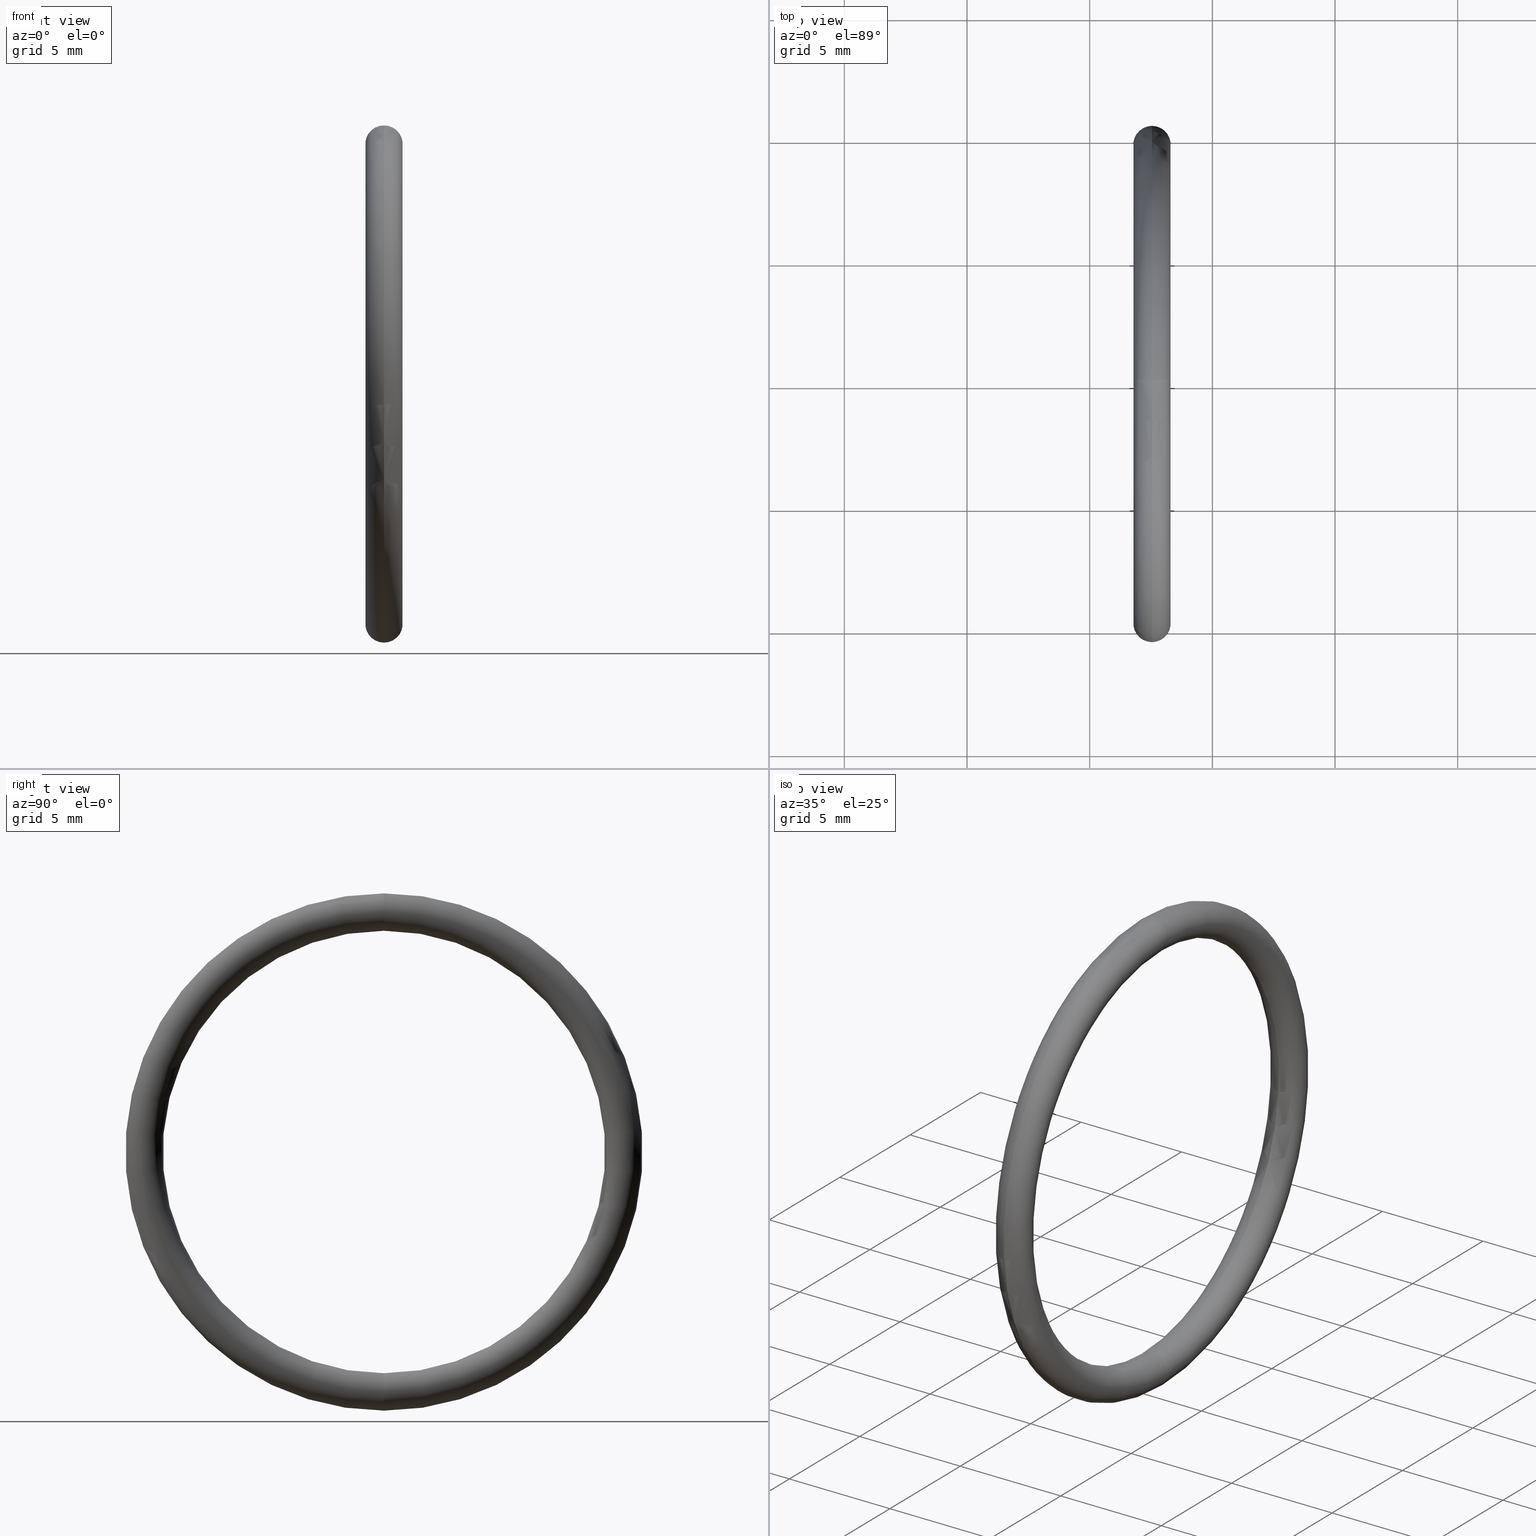
[diagram: canonical four-view strip — front | top / right | iso, engineering-drawing reading convention]
A machine part, canonical four-view strip (front | top / right | iso — engineering-drawing reading convention). The complete STEP part file that produces these views, byte-faithful:
ISO-10303-21;
HEADER;
FILE_DESCRIPTION (( 'STEP AP203' ),
    '1' );
FILE_NAME ('OR-16-BN.STEP',
    '2008-03-29T09:50:34',
    ( 'Baystate-05' ),
    ( 'BayState InfoTech' ),
    'SwSTEP 2.0',
    'SolidWorks 2007',
    '' );
FILE_SCHEMA (( 'CONFIG_CONTROL_DESIGN' ));
ENDSEC;

DATA;
#1 = SHAPE_DEFINITION_REPRESENTATION ( #2, #65 ) ;
#2 = PRODUCT_DEFINITION_SHAPE ( 'NONE', 'NONE',  #75 ) ;
#3 = PRODUCT_RELATED_PRODUCT_CATEGORY ( 'detail', '', ( #179 ) ) ;
#4 = PERSON_AND_ORGANIZATION ( #196, #68 ) ;
#5 = CC_DESIGN_PERSON_AND_ORGANIZATION_ASSIGNMENT ( #33, #6, ( #16 ) ) ;
#6 = PERSON_AND_ORGANIZATION_ROLE ( 'creator' ) ;
#7 = LOCAL_TIME ( 15, 20, 34.00000000000000000, #8 ) ;
#8 = COORDINATED_UNIVERSAL_TIME_OFFSET ( 5, 30, .AHEAD. ) ;
#9 = APPROVAL_PERSON_ORGANIZATION ( #13, #11, #10 ) ;
#10 = APPROVAL_ROLE ( '' ) ;
#11 = APPROVAL ( #12, 'UNSPECIFIED' ) ;
#12 = APPROVAL_STATUS ( 'not_yet_approved' ) ;
#13 = PERSON_AND_ORGANIZATION ( #196, #68 ) ;
#14 = CC_DESIGN_APPROVAL ( #72, ( #75 ) ) ;
#15 = APPROVAL_STATUS ( 'not_yet_approved' ) ;
#16 = PRODUCT_DEFINITION_FORMATION_WITH_SPECIFIED_SOURCE ( 'ANY', '', #179, .NOT_KNOWN. ) ;
#17 = APPROVAL_DATE_TIME ( #38, #72 ) ;
#18 = CC_DESIGN_SECURITY_CLASSIFICATION ( #50, ( #16 ) ) ;
#19 = CC_DESIGN_APPROVAL ( #11, ( #50 ) ) ;
#20 = APPROVAL_DATE_TIME ( #21, #11 ) ;
#21 = DATE_AND_TIME ( #22, #7 ) ;
#22 = CALENDAR_DATE ( 2008, 29, 3 ) ;
#23 = LOCAL_TIME ( 15, 20, 34.00000000000000000, #24 ) ;
#24 = COORDINATED_UNIVERSAL_TIME_OFFSET ( 5, 30, .AHEAD. ) ;
#25 = APPROVAL_PERSON_ORGANIZATION ( #54, #27, #26 ) ;
#26 = APPROVAL_ROLE ( '' ) ;
#27 = APPROVAL ( #15, 'UNSPECIFIED' ) ;
#28 = CC_DESIGN_DATE_AND_TIME_ASSIGNMENT ( #30, #29, ( #50 ) ) ;
#29 = DATE_TIME_ROLE ( 'classification_date' ) ;
#30 = DATE_AND_TIME ( #31, #32 ) ;
#31 = CALENDAR_DATE ( 2008, 29, 3 ) ;
#32 = LOCAL_TIME ( 15, 20, 34.00000000000000000, #46 ) ;
#33 = PERSON_AND_ORGANIZATION ( #196, #68 ) ;
#34 = CC_DESIGN_APPROVAL ( #27, ( #16 ) ) ;
#35 = APPROVAL_DATE_TIME ( #36, #27 ) ;
#36 = DATE_AND_TIME ( #37, #23 ) ;
#37 = CALENDAR_DATE ( 2008, 29, 3 ) ;
#38 = DATE_AND_TIME ( #58, #45 ) ;
#39 = CALENDAR_DATE ( 2008, 29, 3 ) ;
#40 = LOCAL_TIME ( 15, 20, 34.00000000000000000, #41 ) ;
#41 = COORDINATED_UNIVERSAL_TIME_OFFSET ( 5, 30, .AHEAD. ) ;
#42 = CC_DESIGN_PERSON_AND_ORGANIZATION_ASSIGNMENT ( #44, #43, ( #75 ) ) ;
#43 = PERSON_AND_ORGANIZATION_ROLE ( 'creator' ) ;
#44 = PERSON_AND_ORGANIZATION ( #196, #68 ) ;
#45 = LOCAL_TIME ( 15, 20, 34.00000000000000000, #69 ) ;
#46 = COORDINATED_UNIVERSAL_TIME_OFFSET ( 5, 30, .AHEAD. ) ;
#47 = CC_DESIGN_PERSON_AND_ORGANIZATION_ASSIGNMENT ( #49, #48, ( #50 ) ) ;
#48 = PERSON_AND_ORGANIZATION_ROLE ( 'classification_officer' ) ;
#49 = PERSON_AND_ORGANIZATION ( #196, #68 ) ;
#50 = SECURITY_CLASSIFICATION ( '', '', #51 ) ;
#51 = SECURITY_CLASSIFICATION_LEVEL ( 'unclassified' ) ;
#52 = CC_DESIGN_PERSON_AND_ORGANIZATION_ASSIGNMENT ( #4, #53, ( #16 ) ) ;
#53 = PERSON_AND_ORGANIZATION_ROLE ( 'design_supplier' ) ;
#54 = PERSON_AND_ORGANIZATION ( #196, #68 ) ;
#55 = CC_DESIGN_DATE_AND_TIME_ASSIGNMENT ( #57, #56, ( #75 ) ) ;
#56 = DATE_TIME_ROLE ( 'creation_date' ) ;
#57 = DATE_AND_TIME ( #39, #40 ) ;
#58 = CALENDAR_DATE ( 2008, 29, 3 ) ;
#59 = MANIFOLD_SOLID_BREP ( 'NONE', #102 ) ;
#60 = AXIS2_PLACEMENT_3D ( 'NONE', #63, #61, #62 ) ;
#61 = DIRECTION ( 'NONE',  ( 0.0000000000000000000, 1.000000000000000000, 1.224646799147353200E-016 ) ) ;
#62 = DIRECTION ( 'NONE',  ( 0.0000000000000000000, -1.224646799147352200E-016, 1.000000000000000000 ) ) ;
#63 = CARTESIAN_POINT ( 'NONE',  ( 0.1000000000000000600, 4.714890176717309300E-017, -0.3850000000000000100 ) ) ;
#64 =( GEOMETRIC_REPRESENTATION_CONTEXT ( 3 ) GLOBAL_UNCERTAINTY_ASSIGNED_CONTEXT ( ( #144 ) ) GLOBAL_UNIT_ASSIGNED_CONTEXT ( ( #175, #146, #145 ) ) REPRESENTATION_CONTEXT ( 'NONE', 'WORKASPACE' ) );
#65 = ADVANCED_BREP_SHAPE_REPRESENTATION ( 'OR-16-BN', ( #59, #195 ), #64 ) ;
#66 = APPLICATION_CONTEXT ( 'configuration controlled 3d designs of mechanical parts and assemblies' ) ;
#67 = PERSON_AND_ORGANIZATION_ROLE ( 'design_owner' ) ;
#68 = ORGANIZATION ( 'UNSPECIFIED', 'UNSPECIFIED', '' ) ;
#69 = COORDINATED_UNIVERSAL_TIME_OFFSET ( 5, 30, .AHEAD. ) ;
#70 = APPROVAL_PERSON_ORGANIZATION ( #74, #72, #71 ) ;
#71 = APPROVAL_ROLE ( '' ) ;
#72 = APPROVAL ( #73, 'UNSPECIFIED' ) ;
#73 = APPROVAL_STATUS ( 'not_yet_approved' ) ;
#74 = PERSON_AND_ORGANIZATION ( #196, #68 ) ;
#75 = PRODUCT_DEFINITION ( 'UNKNOWN', '', #16, #76 ) ;
#76 = DESIGN_CONTEXT ( 'detailed design', #66, 'design' ) ;
#77 = APPLICATION_PROTOCOL_DEFINITION ( 'international standard', 'config_control_design', 1994, #66 ) ;
#78 = PERSON_AND_ORGANIZATION ( #196, #68 ) ;
#79 = CC_DESIGN_PERSON_AND_ORGANIZATION_ASSIGNMENT ( #78, #67, ( #179 ) ) ;
#80 = MECHANICAL_CONTEXT ( 'NONE', #82, 'mechanical' ) ;
#81 = APPLICATION_PROTOCOL_DEFINITION ( 'international standard', 'config_control_design', 1994, #82 ) ;
#82 = APPLICATION_CONTEXT ( 'configuration controlled 3d designs of mechanical parts and assemblies' ) ;
#83 = EDGE_CURVE ( 'NONE', #84, #85, #120, .T. ) ;
#84 = VERTEX_POINT ( 'NONE', #149 ) ;
#85 = VERTEX_POINT ( 'NONE', #163 ) ;
#86 = ORIENTED_EDGE ( 'NONE', *, *, #87, .T. ) ;
#87 = EDGE_CURVE ( 'NONE', #107, #88, #150, .T. ) ;
#88 = VERTEX_POINT ( 'NONE', #167 ) ;
#89 = ORIENTED_EDGE ( 'NONE', *, *, #90, .F. ) ;
#90 = EDGE_CURVE ( 'NONE', #85, #88, #161, .T. ) ;
#91 = ADVANCED_FACE ( 'NONE', ( #162 ), #183, .T. ) ;
#92 = EDGE_LOOP ( 'NONE', ( #119, #93, #116, #115 ) ) ;
#93 = ORIENTED_EDGE ( 'NONE', *, *, #108, .T. ) ;
#94 = ORIENTED_EDGE ( 'NONE', *, *, #95, .F. ) ;
#95 = EDGE_CURVE ( 'NONE', #88, #107, #148, .T. ) ;
#96 = ORIENTED_EDGE ( 'NONE', *, *, #108, .F. ) ;
#97 = EDGE_CURVE ( 'NONE', #88, #85, #173, .T. ) ;
#98 = ADVANCED_FACE ( 'NONE', ( #174 ), #141, .T. ) ;
#99 = ORIENTED_EDGE ( 'NONE', *, *, #83, .F. ) ;
#100 = ORIENTED_EDGE ( 'NONE', *, *, #111, .F. ) ;
#101 = ORIENTED_EDGE ( 'NONE', *, *, #90, .T. ) ;
#102 = CLOSED_SHELL ( 'NONE', ( #98, #91, #117, #113 ) ) ;
#103 = EDGE_LOOP ( 'NONE', ( #114, #100, #101, #112 ) ) ;
#104 = EDGE_LOOP ( 'NONE', ( #99, #105, #86, #89 ) ) ;
#105 = ORIENTED_EDGE ( 'NONE', *, *, #106, .T. ) ;
#106 = EDGE_CURVE ( 'NONE', #84, #107, #182, .T. ) ;
#107 = VERTEX_POINT ( 'NONE', #136 ) ;
#108 = EDGE_CURVE ( 'NONE', #107, #84, #134, .T. ) ;
#109 = ORIENTED_EDGE ( 'NONE', *, *, #97, .T. ) ;
#110 = ORIENTED_EDGE ( 'NONE', *, *, #111, .T. ) ;
#111 = EDGE_CURVE ( 'NONE', #85, #84, #128, .T. ) ;
#112 = ORIENTED_EDGE ( 'NONE', *, *, #95, .T. ) ;
#113 = ADVANCED_FACE ( 'NONE', ( #129 ), #191, .T. ) ;
#114 = ORIENTED_EDGE ( 'NONE', *, *, #106, .F. ) ;
#115 = ORIENTED_EDGE ( 'NONE', *, *, #97, .F. ) ;
#116 = ORIENTED_EDGE ( 'NONE', *, *, #83, .T. ) ;
#117 = ADVANCED_FACE ( 'NONE', ( #156 ), #188, .T. ) ;
#118 = EDGE_LOOP ( 'NONE', ( #96, #94, #109, #110 ) ) ;
#119 = ORIENTED_EDGE ( 'NONE', *, *, #87, .F. ) ;
#120 = CIRCLE ( 'NONE', #60, 0.03000000000000002300 ) ;
#121 = CARTESIAN_POINT ( 'NONE',  ( 0.1000000000000000600, 0.0000000000000000000, 0.3850000000000000100 ) ) ;
#122 = AXIS2_PLACEMENT_3D ( 'NONE', #121, #124, #123 ) ;
#123 = DIRECTION ( 'NONE',  ( 0.0000000000000000000, 0.0000000000000000000, -1.000000000000000000 ) ) ;
#124 = DIRECTION ( 'NONE',  ( 0.0000000000000000000, -1.000000000000000000, 0.0000000000000000000 ) ) ;
#125 = DIRECTION ( 'NONE',  ( -1.000000000000000000, 0.0000000000000000000, 0.0000000000000000000 ) ) ;
#126 = CARTESIAN_POINT ( 'NONE',  ( 0.1000000000000000600, 0.0000000000000000000, 0.0000000000000000000 ) ) ;
#127 = AXIS2_PLACEMENT_3D ( 'NONE', #126, #125, #169 ) ;
#128 = CIRCLE ( 'NONE', #160, 0.03000000000000002300 ) ;
#129 = FACE_OUTER_BOUND ( 'NONE', #103, .T. ) ;
#130 = DIRECTION ( 'NONE',  ( 0.0000000000000000000, 0.0000000000000000000, 1.000000000000000000 ) ) ;
#131 = DIRECTION ( 'NONE',  ( -1.000000000000000000, 0.0000000000000000000, 0.0000000000000000000 ) ) ;
#132 = CARTESIAN_POINT ( 'NONE',  ( 0.1000000000000000600, 0.0000000000000000000, 0.0000000000000000000 ) ) ;
#133 = AXIS2_PLACEMENT_3D ( 'NONE', #132, #131, #130 ) ;
#134 = CIRCLE ( 'NONE', #133, 0.4150000000000000400 ) ;
#135 = CARTESIAN_POINT ( 'NONE',  ( 0.1000000000000000600, 4.714890176717309300E-017, -0.3850000000000000100 ) ) ;
#136 = CARTESIAN_POINT ( 'NONE',  ( 0.1000000000000000600, 0.0000000000000000000, 0.4150000000000000400 ) ) ;
#137 = DIRECTION ( 'NONE',  ( 0.0000000000000000000, 0.0000000000000000000, 1.000000000000000000 ) ) ;
#138 = DIRECTION ( 'NONE',  ( -1.000000000000000000, 0.0000000000000000000, 0.0000000000000000000 ) ) ;
#139 = DIRECTION ( 'NONE',  ( 0.0000000000000000000, 0.0000000000000000000, 1.000000000000000000 ) ) ;
#140 = AXIS2_PLACEMENT_3D ( 'NONE', #164, #165, #139 ) ;
#141 = TOROIDAL_SURFACE ( 'NONE', #140, 0.3850000000000000100, 0.03000000000000000900 ) ;
#142 = DIRECTION ( 'NONE',  ( 0.0000000000000000000, 0.0000000000000000000, -1.000000000000000000 ) ) ;
#143 = DIRECTION ( 'NONE',  ( 0.0000000000000000000, -1.000000000000000000, 0.0000000000000000000 ) ) ;
#144 = UNCERTAINTY_MEASURE_WITH_UNIT (LENGTH_MEASURE( 1.000000000000000100E-005 ), #175, 'distance_accuracy_value', 'NONE');
#145 =( NAMED_UNIT ( * ) SI_UNIT ( $, .STERADIAN. ) SOLID_ANGLE_UNIT ( ) );
#146 =( NAMED_UNIT ( * ) PLANE_ANGLE_UNIT ( ) SI_UNIT ( $, .RADIAN. ) );
#147 = AXIS2_PLACEMENT_3D ( 'NONE', #151, #143, #142 ) ;
#148 = CIRCLE ( 'NONE', #147, 0.03000000000000002300 ) ;
#149 = CARTESIAN_POINT ( 'NONE',  ( 0.1000000000000000600, 5.082284216461516300E-017, -0.4150000000000000400 ) ) ;
#150 = CIRCLE ( 'NONE', #122, 0.03000000000000002300 ) ;
#151 = CARTESIAN_POINT ( 'NONE',  ( 0.1000000000000000600, 0.0000000000000000000, 0.3850000000000000100 ) ) ;
#152 = DIRECTION ( 'NONE',  ( 0.0000000000000000000, 0.0000000000000000000, 1.000000000000000000 ) ) ;
#153 = DIRECTION ( 'NONE',  ( -1.000000000000000000, 0.0000000000000000000, 0.0000000000000000000 ) ) ;
#154 = AXIS2_PLACEMENT_3D ( 'NONE', #168, #153, #152 ) ;
#155 = CARTESIAN_POINT ( 'NONE',  ( 0.1000000000000000600, 0.0000000000000000000, 0.0000000000000000000 ) ) ;
#156 = FACE_OUTER_BOUND ( 'NONE', #118, .T. ) ;
#157 = DIRECTION ( 'NONE',  ( -1.000000000000000000, 0.0000000000000000000, 0.0000000000000000000 ) ) ;
#158 = DIRECTION ( 'NONE',  ( 0.0000000000000000000, -1.224646799147352200E-016, 1.000000000000000000 ) ) ;
#159 = DIRECTION ( 'NONE',  ( 0.0000000000000000000, 1.000000000000000000, 1.224646799147353200E-016 ) ) ;
#160 = AXIS2_PLACEMENT_3D ( 'NONE', #135, #159, #158 ) ;
#161 = CIRCLE ( 'NONE', #127, 0.3549999999999999800 ) ;
#162 = FACE_OUTER_BOUND ( 'NONE', #92, .T. ) ;
#163 = CARTESIAN_POINT ( 'NONE',  ( 0.1000000000000000600, 4.347496136973103500E-017, -0.3549999999999999800 ) ) ;
#164 = CARTESIAN_POINT ( 'NONE',  ( 0.1000000000000000600, 0.0000000000000000000, 0.0000000000000000000 ) ) ;
#165 = DIRECTION ( 'NONE',  ( -1.000000000000000000, 0.0000000000000000000, 0.0000000000000000000 ) ) ;
#166 = DIRECTION ( 'NONE',  ( 0.0000000000000000000, 0.0000000000000000000, 1.000000000000000000 ) ) ;
#167 = CARTESIAN_POINT ( 'NONE',  ( 0.1000000000000000600, 0.0000000000000000000, 0.3549999999999999800 ) ) ;
#168 = CARTESIAN_POINT ( 'NONE',  ( 0.1000000000000000600, 0.0000000000000000000, 0.0000000000000000000 ) ) ;
#169 = DIRECTION ( 'NONE',  ( 0.0000000000000000000, 0.0000000000000000000, 1.000000000000000000 ) ) ;
#170 = DIRECTION ( 'NONE',  ( -1.000000000000000000, 0.0000000000000000000, 0.0000000000000000000 ) ) ;
#171 = CARTESIAN_POINT ( 'NONE',  ( 0.1000000000000000600, 0.0000000000000000000, 0.0000000000000000000 ) ) ;
#172 = AXIS2_PLACEMENT_3D ( 'NONE', #171, #170, #166 ) ;
#173 = CIRCLE ( 'NONE', #172, 0.3549999999999999800 ) ;
#174 = FACE_OUTER_BOUND ( 'NONE', #104, .T. ) ;
#175 =( CONVERSION_BASED_UNIT ( 'INCH', #176 ) LENGTH_UNIT ( ) NAMED_UNIT ( #177 ) );
#176 = LENGTH_MEASURE_WITH_UNIT ( LENGTH_MEASURE( 0.02539999999999999900 ), #178 );
#177 = DIMENSIONAL_EXPONENTS ( 1.000000000000000000, 0.0000000000000000000, 0.0000000000000000000, 0.0000000000000000000, 0.0000000000000000000, 0.0000000000000000000, 0.0000000000000000000 ) ;
#178 =( LENGTH_UNIT ( ) NAMED_UNIT ( * ) SI_UNIT ( $, .METRE. ) );
#179 = PRODUCT ( 'OR-16-BN', 'OR-16-BN', '', ( #80 ) ) ;
#180 = CARTESIAN_POINT ( 'NONE',  ( 0.1000000000000000600, 0.0000000000000000000, 0.0000000000000000000 ) ) ;
#181 = AXIS2_PLACEMENT_3D ( 'NONE', #180, #138, #137 ) ;
#182 = CIRCLE ( 'NONE', #181, 0.4150000000000000400 ) ;
#183 = TOROIDAL_SURFACE ( 'NONE', #154, 0.3850000000000000100, 0.03000000000000000900 ) ;
#184 = DIRECTION ( 'NONE',  ( 0.0000000000000000000, 0.0000000000000000000, 1.000000000000000000 ) ) ;
#185 = DIRECTION ( 'NONE',  ( -1.000000000000000000, 0.0000000000000000000, 0.0000000000000000000 ) ) ;
#186 = CARTESIAN_POINT ( 'NONE',  ( 0.1000000000000000600, 0.0000000000000000000, 0.0000000000000000000 ) ) ;
#187 = AXIS2_PLACEMENT_3D ( 'NONE', #186, #185, #184 ) ;
#188 = TOROIDAL_SURFACE ( 'NONE', #187, 0.3850000000000000100, 0.03000000000000000900 ) ;
#189 = DIRECTION ( 'NONE',  ( 0.0000000000000000000, 0.0000000000000000000, 1.000000000000000000 ) ) ;
#190 = AXIS2_PLACEMENT_3D ( 'NONE', #155, #157, #189 ) ;
#191 = TOROIDAL_SURFACE ( 'NONE', #190, 0.3850000000000000100, 0.03000000000000000900 ) ;
#192 = CARTESIAN_POINT ( 'NONE',  ( 0.0000000000000000000, 0.0000000000000000000, 0.0000000000000000000 ) ) ;
#193 = DIRECTION ( 'NONE',  ( 1.000000000000000000, 0.0000000000000000000, 0.0000000000000000000 ) ) ;
#194 = DIRECTION ( 'NONE',  ( 0.0000000000000000000, 0.0000000000000000000, 1.000000000000000000 ) ) ;
#195 = AXIS2_PLACEMENT_3D ( 'NONE', #192, #194, #193 ) ;
#196 = PERSON ( 'UNSPECIFIED', 'UNSPECIFIED', 'UNSPECIFIED', ('UNSPECIFIED'), ('UNSPECIFIED'), ('UNSPECIFIED') ) ;
ENDSEC;
END-ISO-10303-21;
